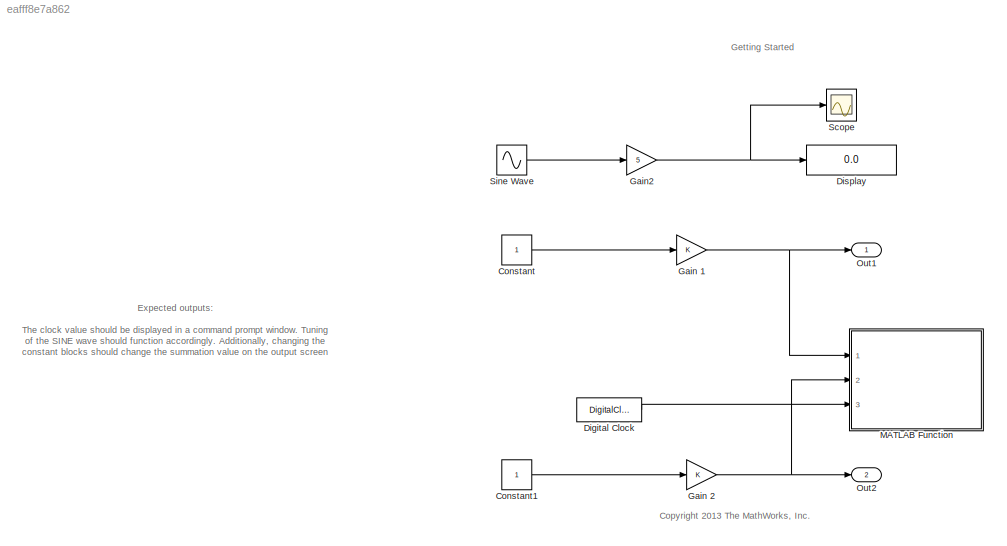
MODEL slx_eafff8e7a862
KIND model
CONFIG PostLoadFcn = T = 0.1;
BLOCK [Constant] Constant
BLOCK [Constant] Constant1
BLOCK [DigitalClock] Digital Clock
  SampleTime = 0.1
BLOCK [Display] Display
  Decimation = 1
  Ports = [1]
BLOCK [Gain] Gain 1
  OutDataTypeStr = Inherit: Inherit via internal rule
  ParamDataTypeStr = Inherit: Inherit via internal rule
  SaturateOnIntegerOverflow = off
BLOCK [Gain] Gain 2
  OutDataTypeStr = Inherit: Inherit via internal rule
  ParamDataTypeStr = Inherit: Inherit via internal rule
  SaturateOnIntegerOverflow = off
BLOCK [Gain] Gain2
  Gain = 5
  OutDataTypeStr = Inherit: Inherit via internal rule
  ParamDataTypeStr = Inherit: Inherit via internal rule
  SaturateOnIntegerOverflow = off
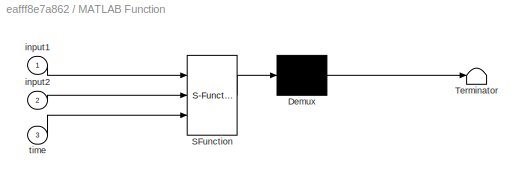
BLOCK [SubSystem] MATLAB Function
  ErrorFcn = Stateflow.Translate.translate
  PermitHierarchicalResolution = ExplicitOnly
  Ports = [3]
  RequestExecContextInheritance = off
  SFBlockType = MATLAB Function
  TreatAsAtomicUnit = on
BLOCK [Demux] MATLAB Function/ Demux 
  Outputs = 1
  Ports = [1, 1]
BLOCK [S-Function] MATLAB Function/ SFunction 
  EnableBusSupport = on
  FunctionName = sf_sfun
  PortCounts = [3 1]
  Ports = [3, 1]
  Tag = Stateflow S-Function Hello_World 2
BLOCK [Terminator] MATLAB Function/ Terminator 
BLOCK [Inport] MATLAB Function/input1
  IconDisplay = Port number
BLOCK [Inport] MATLAB Function/input2
  IconDisplay = Port number
  Port = 2
BLOCK [Inport] MATLAB Function/time
  IconDisplay = Port number
  Port = 3
BLOCK [Outport] Out1
  IconDisplay = Port number
BLOCK [Outport] Out2
  IconDisplay = Port number
  Port = 2
BLOCK [Scope] Scope
  DataFormat = StructureWithTime
  Floating = off
  NumInputPorts = 1
  Ports = [1]
  SampleTime = 0
  ShowLegends = off
BLOCK [Sin] Sine Wave
  Frequency = 1/2
  Ports = [0, 1]
  SampleTime = 0.01
ANNOTATION (root): <copyright redacted>
ANNOTATION (root): Expected outputs: The clock value should be displayed in a command prompt window. Tuning of the SINE wave should function accordingly. Additionally, changing the constant blocks should change the summation value on the output screen
ANNOTATION (root): Getting Started
LINE Constant1:1 -> Gain 2:1
LINE Constant:1 -> Gain 1:1
LINE Digital Clock:1 -> MATLAB Function:3
NET Gain 1:1 -> MATLAB Function:1, Out1:1
NET Gain 2:1 -> MATLAB Function:2, Out2:1
NET Gain2:1 -> Display:1, Scope:1
LINE Sine Wave:1 -> Gain2:1
note: NET lines group one-source signal fan-out (src -> all destinations, sorted); 1:1 wires keep LINE
